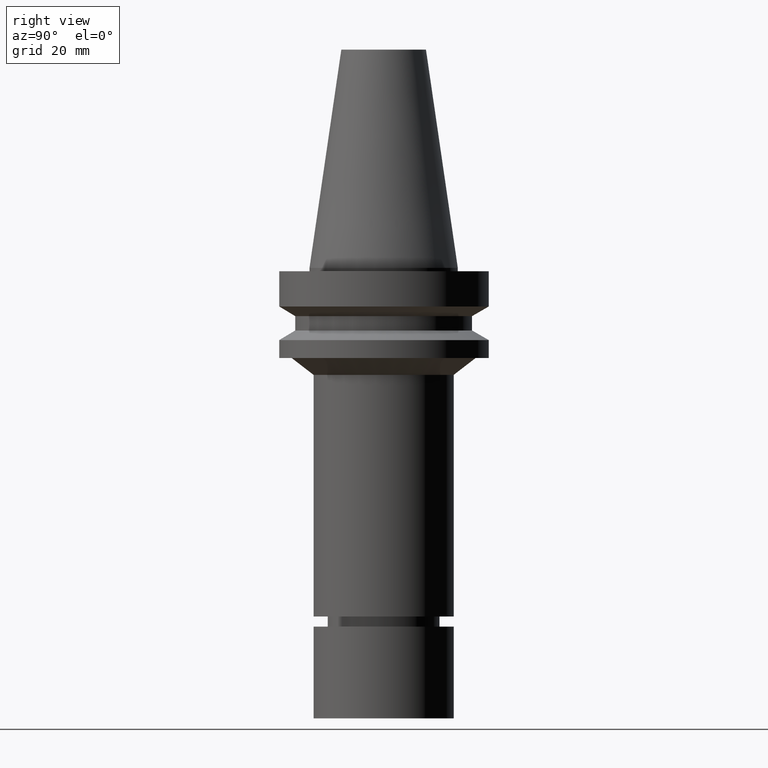
[diagram: clean part render]
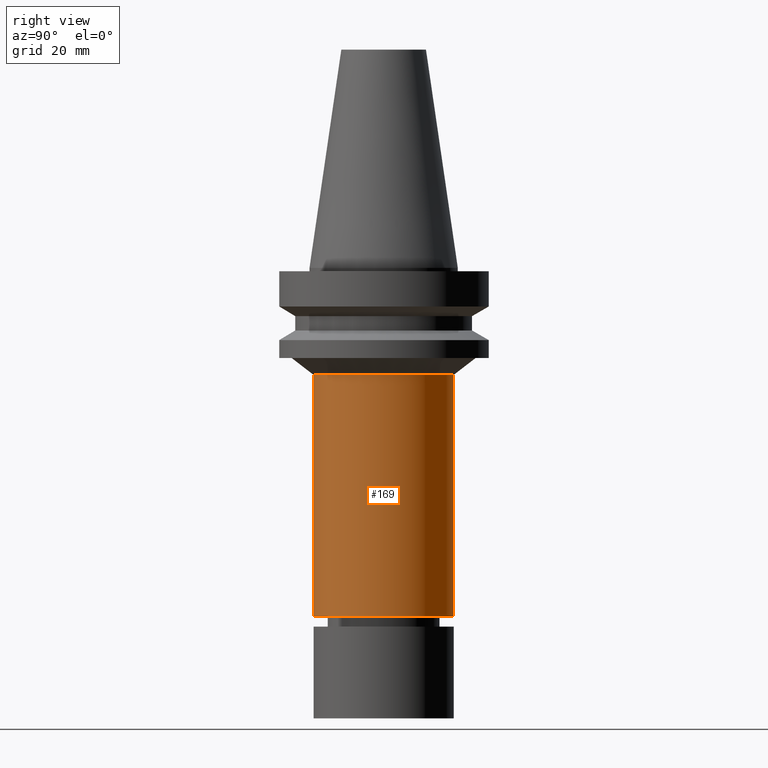
[diagram: same view with one face highlighted and labeled with its STEP entity id]
A machine part, right view. The second image highlights one B-rep face of the part: STEP entity #169.
In plain terms, the highlighted cylindrical surface (bore or boss wall) has radius 21 mm, axis along (0, -0, -1).
Its self-contained STEP definition (entity closure, byte-faithful):
#107=EDGE_CURVE('Unnamed[1]',#251,#251,#252,.T.);
#116=EDGE_CURVE('Unnamed[1]',#265,#265,#266,.T.);
#169=ADVANCED_FACE('Unnamed[1]',(#345,#346),#347,.T.);
#251=VERTEX_POINT('',#438);
#252=CIRCLE('',#439,21.0000000000001);
#265=VERTEX_POINT('',#456);
#266=CIRCLE('',#457,21.0000000000004);
#345=FACE_BOUND('',#555,.T.);
#346=FACE_BOUND('',#556,.T.);
#347=CYLINDRICAL_SURFACE('',#557,21.0000000000003);
#438=CARTESIAN_POINT('',(6.39877952554491E-015,21.0000000000002,-104.5));
#439=AXIS2_PLACEMENT_3D('',#635,#636,#637);
#456=CARTESIAN_POINT('',(1.96338026992049E-015,21.0000000000005,-32.0644331294128));
#457=AXIS2_PLACEMENT_3D('',#650,#651,#652);
#555=EDGE_LOOP('',(#739));
#556=EDGE_LOOP('',(#740));
#557=AXIS2_PLACEMENT_3D('',#741,#742,#743);
#635=CARTESIAN_POINT('',(6.39877952554491E-015,6.11809795311637E-014,-104.5));
#636=DIRECTION('',(6.12323399573677E-017,-9.35480732737827E-017,-1.0));
#637=DIRECTION('',(9.01014694291364E-034,1.0,-9.35480732737827E-017));
#650=CARTESIAN_POINT('',(1.96338026992049E-015,6.79571872484049E-014,-32.0644331294128));
#651=DIRECTION('',(6.12323399573677E-017,-9.35480732737815E-017,-1.0));
#652=DIRECTION('',(9.01014694291352E-034,1.0,-9.35480732737815E-017));
#739=ORIENTED_EDGE('',*,*,#107,.F.);
#740=ORIENTED_EDGE('',*,*,#116,.T.);
#741=CARTESIAN_POINT('',(4.1810798977327E-015,6.45690833897843E-014,-68.2822165647063));
#742=DIRECTION('',(6.12323399573677E-017,-9.35480732737821E-017,-1.0));
#743=DIRECTION('',(9.01014694291358E-034,1.0,-9.35480732737821E-017));